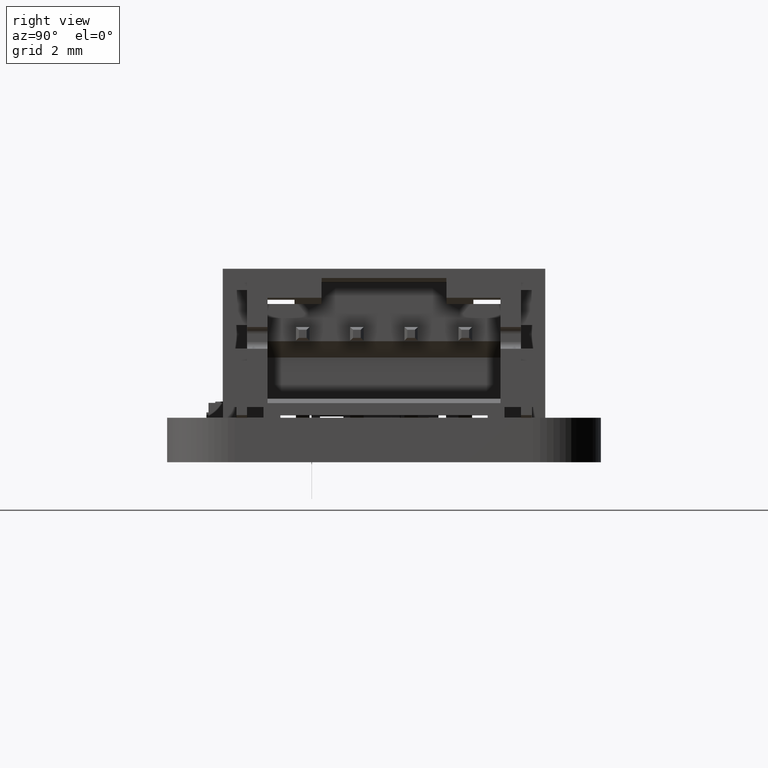
[diagram: clean part render]
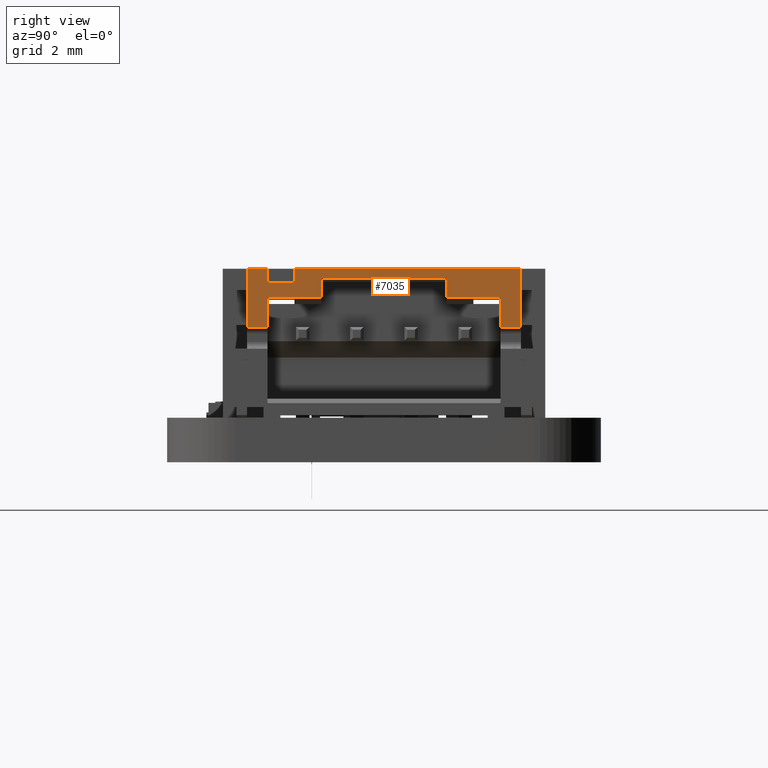
[diagram: same view with one face highlighted and labeled with its STEP entity id]
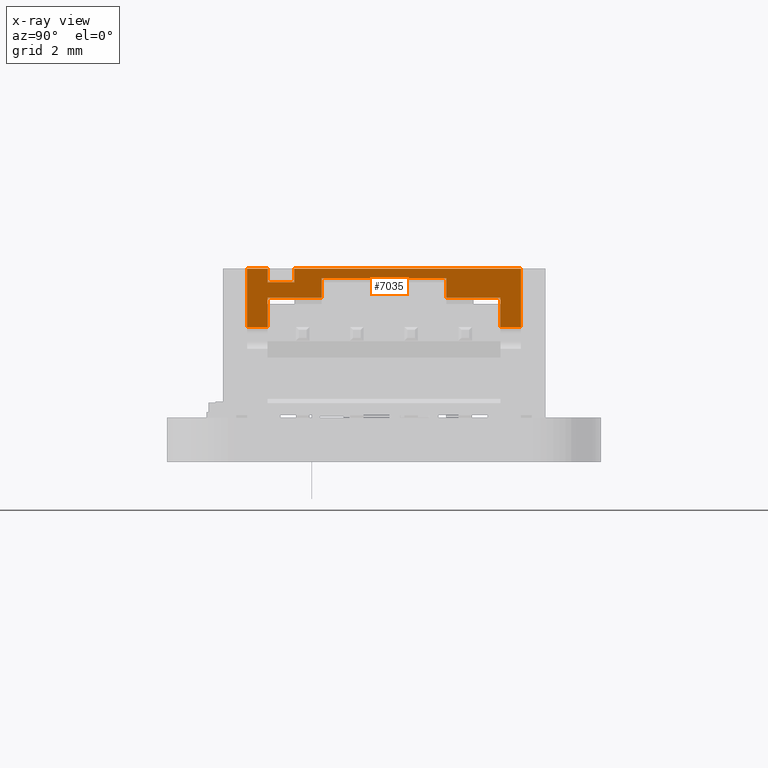
[diagram: x-ray of the same camera — body ghosted, the highlighted face saturated]
A machine part, right view. The second image highlights one B-rep face of the part: STEP entity #7035.
The next image is the same camera in x-ray: the body ghosted, the highlighted face saturated — about 0% of this face is hidden behind the body in this view.
In plain terms, the highlighted planar face has unit normal (-1, -0, -0).
Its self-contained STEP definition (entity closure, byte-faithful):
#6334 = EDGE_CURVE('',#6335,#6337,#6339,.T.);
#6335 = VERTEX_POINT('',#6336);
#6336 = CARTESIAN_POINT('',(-0.3,5.16,-5.194983820293E-14));
#6337 = VERTEX_POINT('',#6338);
#6338 = CARTESIAN_POINT('',(4.299999999999,5.16,-5.194983820293E-14));
#6339 = LINE('',#6340,#6341);
#6340 = CARTESIAN_POINT('',(3.95,5.16,-8.317486077051E-14));
#6341 = VECTOR('',#6342,1.);
#6342 = DIRECTION('',(1.,-5.374889246201E-17,-7.391429510507E-15));
#6603 = EDGE_CURVE('',#6604,#6606,#6608,.T.);
#6604 = VERTEX_POINT('',#6605);
#6605 = CARTESIAN_POINT('',(7.049999999999,5.5,-4.857225732735E-14));
#6606 = VERTEX_POINT('',#6607);
#6607 = CARTESIAN_POINT('',(-1.3,5.5,-7.979727989493E-14));
#6608 = LINE('',#6609,#6610);
#6609 = CARTESIAN_POINT('',(-3.95,5.5,-7.979727989493E-14));
#6610 = VECTOR('',#6611,1.);
#6611 = DIRECTION('',(-1.,5.374889246194E-17,-5.629900911267E-31));
#6726 = VERTEX_POINT('',#6727);
#6727 = CARTESIAN_POINT('',(-3.05,5.5,-4.857225732735E-14));
#6733 = EDGE_CURVE('',#6734,#6726,#6736,.T.);
#6734 = VERTEX_POINT('',#6735);
#6735 = CARTESIAN_POINT('',(-2.3,5.5,-6.938893903907E-14));
#6736 = LINE('',#6737,#6738);
#6737 = CARTESIAN_POINT('',(-3.95,5.5,-7.979727989493E-14));
#6738 = VECTOR('',#6739,1.);
#6739 = DIRECTION('',(-1.,5.374889246194E-17,-5.629900911267E-31));
#7035 = ADVANCED_FACE('',(#7036),#7139,.F.);
#7036 = FACE_BOUND('',#7037,.T.);
#7037 = EDGE_LOOP('',(#7038,#7046,#7047,#7055,#7063,#7069,#7070,#7078,
    #7086,#7094,#7102,#7108,#7109,#7117,#7125,#7133));
#7038 = ORIENTED_EDGE('',*,*,#7039,.T.);
#7039 = EDGE_CURVE('',#7040,#6604,#7042,.T.);
#7040 = VERTEX_POINT('',#7041);
#7041 = CARTESIAN_POINT('',(7.049999999999,3.35,-2.428612866368E-14));
#7042 = LINE('',#7043,#7044);
#7043 = CARTESIAN_POINT('',(7.049999999999,5.5,-3.469446951954E-14));
#7044 = VECTOR('',#7045,1.);
#7045 = DIRECTION('',(0.,1.,-1.047445008333E-14));
#7046 = ORIENTED_EDGE('',*,*,#6603,.T.);
#7047 = ORIENTED_EDGE('',*,*,#7048,.F.);
#7048 = EDGE_CURVE('',#7049,#6606,#7051,.T.);
#7049 = VERTEX_POINT('',#7050);
#7050 = CARTESIAN_POINT('',(-1.3,5.,-6.415171399741E-14));
#7051 = LINE('',#7052,#7053);
#7052 = CARTESIAN_POINT('',(-1.3,5.,-6.415171399741E-14));
#7053 = VECTOR('',#7054,1.);
#7054 = DIRECTION('',(5.374889246194E-17,1.,-1.047445008333E-14));
#7055 = ORIENTED_EDGE('',*,*,#7056,.F.);
#7056 = EDGE_CURVE('',#7057,#7049,#7059,.T.);
#7057 = VERTEX_POINT('',#7058);
#7058 = CARTESIAN_POINT('',(-2.3,5.,-6.415171399741E-14));
#7059 = LINE('',#7060,#7061);
#7060 = CARTESIAN_POINT('',(-2.3,5.,-6.415171399741E-14));
#7061 = VECTOR('',#7062,1.);
#7062 = DIRECTION('',(1.,0.,0.));
#7063 = ORIENTED_EDGE('',*,*,#7064,.T.);
#7064 = EDGE_CURVE('',#7057,#6734,#7065,.T.);
#7065 = LINE('',#7066,#7067);
#7066 = CARTESIAN_POINT('',(-2.3,5.,-6.415171399741E-14));
#7067 = VECTOR('',#7068,1.);
#7068 = DIRECTION('',(5.374889246194E-17,1.,-1.047445008333E-14));
#7069 = ORIENTED_EDGE('',*,*,#6733,.T.);
#7070 = ORIENTED_EDGE('',*,*,#7071,.F.);
#7071 = EDGE_CURVE('',#7072,#6726,#7074,.T.);
#7072 = VERTEX_POINT('',#7073);
#7073 = CARTESIAN_POINT('',(-3.05,3.35,-2.428612866368E-14));
#7074 = LINE('',#7075,#7076);
#7075 = CARTESIAN_POINT('',(-3.05,5.5,-3.469446951954E-14));
#7076 = VECTOR('',#7077,1.);
#7077 = DIRECTION('',(0.,1.,-1.047445008333E-14));
#7078 = ORIENTED_EDGE('',*,*,#7079,.T.);
#7079 = EDGE_CURVE('',#7072,#7080,#7082,.T.);
#7080 = VERTEX_POINT('',#7081);
#7081 = CARTESIAN_POINT('',(-2.3,3.35,-1.734723475977E-14));
#7082 = LINE('',#7083,#7084);
#7083 = CARTESIAN_POINT('',(-3.95,3.35,-1.040834085586E-14));
#7084 = VECTOR('',#7085,1.);
#7085 = DIRECTION('',(1.,-5.374889246194E-17,5.384533896632E-31));
#7086 = ORIENTED_EDGE('',*,*,#7087,.F.);
#7087 = EDGE_CURVE('',#7088,#7080,#7090,.T.);
#7088 = VERTEX_POINT('',#7089);
#7089 = CARTESIAN_POINT('',(-2.3,4.43,-3.042570183428E-14));
#7090 = LINE('',#7091,#7092);
#7091 = CARTESIAN_POINT('',(-2.3,5.5,-4.163336342344E-14));
#7092 = VECTOR('',#7093,1.);
#7093 = DIRECTION('',(-0.,-1.,1.047445008333E-14));
#7094 = ORIENTED_EDGE('',*,*,#7095,.T.);
#7095 = EDGE_CURVE('',#7088,#7096,#7098,.T.);
#7096 = VERTEX_POINT('',#7097);
#7097 = CARTESIAN_POINT('',(-0.3,4.43,-4.43034896421E-14));
#7098 = LINE('',#7099,#7100);
#7099 = CARTESIAN_POINT('',(3.95,4.43,-7.552851220968E-14));
#7100 = VECTOR('',#7101,1.);
#7101 = DIRECTION('',(1.,-5.374889246201E-17,-7.391429510507E-15));
#7102 = ORIENTED_EDGE('',*,*,#7103,.F.);
#7103 = EDGE_CURVE('',#6335,#7096,#7104,.T.);
#7104 = LINE('',#7105,#7106);
#7105 = CARTESIAN_POINT('',(-0.3,5.5,-5.551115123126E-14));
#7106 = VECTOR('',#7107,1.);
#7107 = DIRECTION('',(-0.,-1.,1.047445008333E-14));
#7108 = ORIENTED_EDGE('',*,*,#6334,.T.);
#7109 = ORIENTED_EDGE('',*,*,#7110,.T.);
#7110 = EDGE_CURVE('',#6337,#7111,#7113,.T.);
#7111 = VERTEX_POINT('',#7112);
#7112 = CARTESIAN_POINT('',(4.299999999999,4.43,-4.43034896421E-14));
#7113 = LINE('',#7114,#7115);
#7114 = CARTESIAN_POINT('',(4.299999999999,5.5,-5.551115123126E-14));
#7115 = VECTOR('',#7116,1.);
#7116 = DIRECTION('',(-0.,-1.,1.047445008333E-14));
#7117 = ORIENTED_EDGE('',*,*,#7118,.F.);
#7118 = EDGE_CURVE('',#7119,#7111,#7121,.T.);
#7119 = VERTEX_POINT('',#7120);
#7120 = CARTESIAN_POINT('',(6.299999999999,4.43,-3.042570183428E-14));
#7121 = LINE('',#7122,#7123);
#7122 = CARTESIAN_POINT('',(4.999999999938E-02,4.43,-7.552851220968E-14)
  );
#7123 = VECTOR('',#7124,1.);
#7124 = DIRECTION('',(-1.,-5.374889246201E-17,-7.391429510507E-15));
#7125 = ORIENTED_EDGE('',*,*,#7126,.T.);
#7126 = EDGE_CURVE('',#7119,#7127,#7129,.T.);
#7127 = VERTEX_POINT('',#7128);
#7128 = CARTESIAN_POINT('',(6.299999999999,3.35,-1.734723475977E-14));
#7129 = LINE('',#7130,#7131);
#7130 = CARTESIAN_POINT('',(6.299999999999,5.5,-4.163336342344E-14));
#7131 = VECTOR('',#7132,1.);
#7132 = DIRECTION('',(-0.,-1.,1.047445008333E-14));
#7133 = ORIENTED_EDGE('',*,*,#7134,.F.);
#7134 = EDGE_CURVE('',#7040,#7127,#7135,.T.);
#7135 = LINE('',#7136,#7137);
#7136 = CARTESIAN_POINT('',(7.949999999999,3.35,-1.040834085586E-14));
#7137 = VECTOR('',#7138,1.);
#7138 = DIRECTION('',(-1.,-5.374889246194E-17,5.384533896632E-31));
#7139 = PLANE('',#7140);
#7140 = AXIS2_PLACEMENT_3D('',#7141,#7142,#7143);
#7141 = CARTESIAN_POINT('',(3.95,5.5,-8.673617379884E-14));
#7142 = DIRECTION('',(-7.391429510507E-15,-1.047445008333E-14,-1.));
#7143 = DIRECTION('',(0.,1.,-1.047445008333E-14));